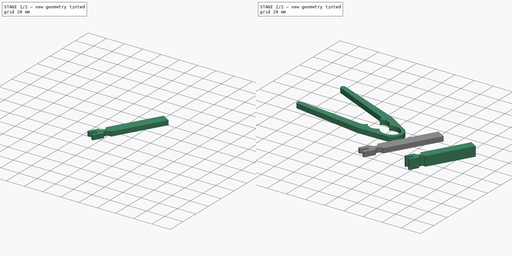
[diagram: build sequence overview — one tinted view per stage of 2, left to right]
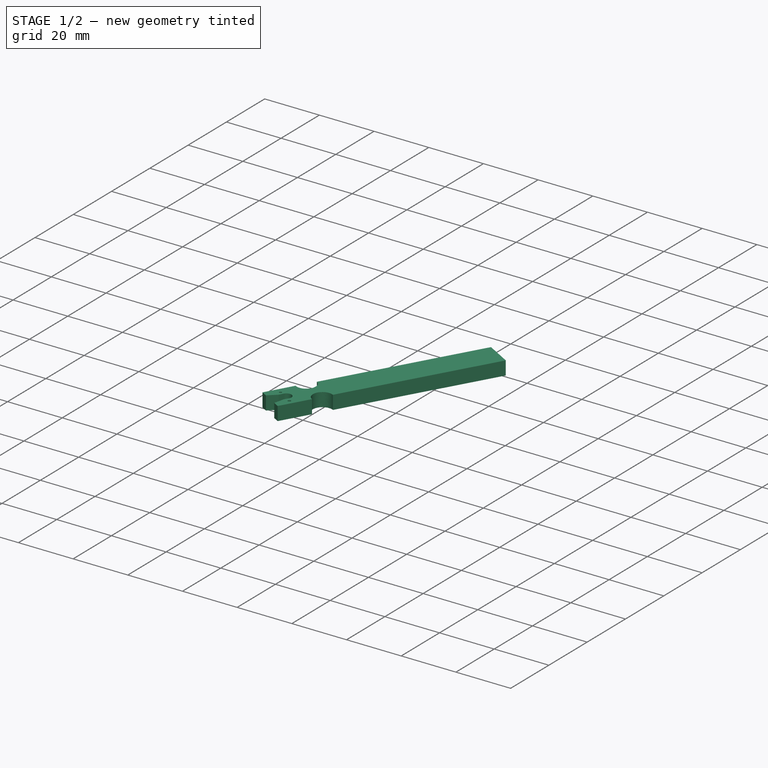
[diagram: stage 1 of 2 — iso view after this stage's code; geometry added in this stage tinted green]
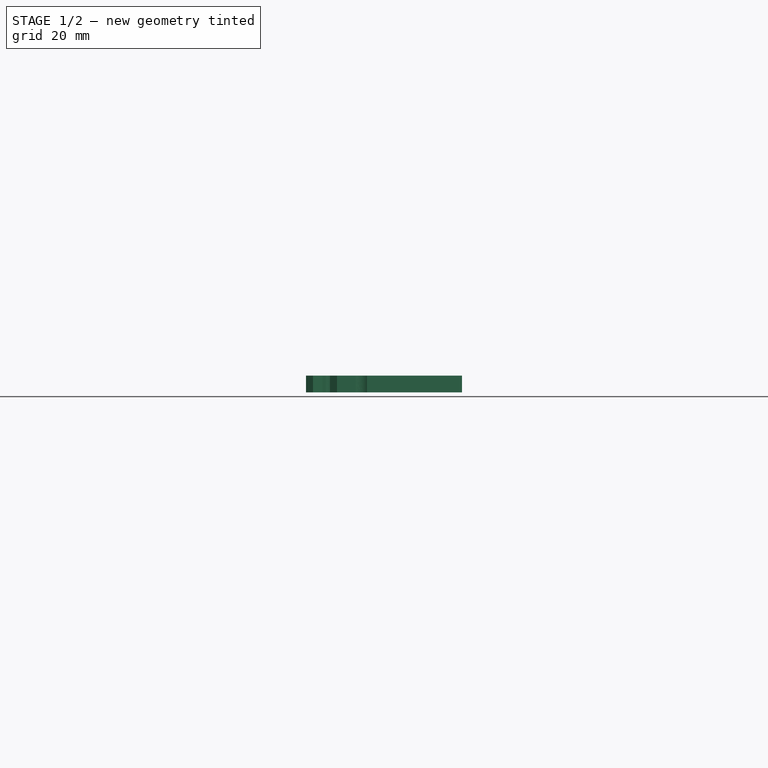
[diagram: stage 1 of 2 — front view after this stage's code; geometry added in this stage tinted green]
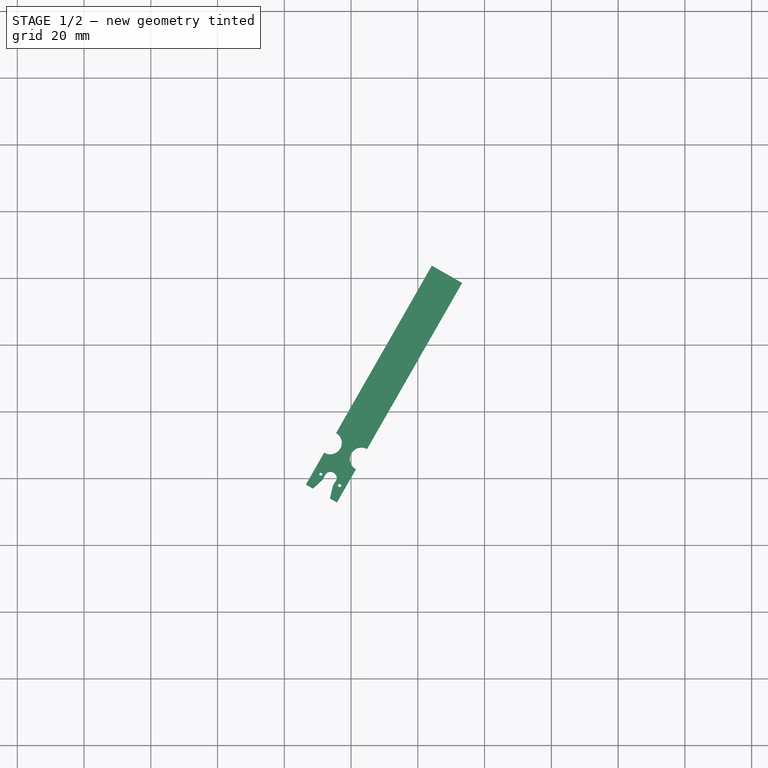
[diagram: stage 1 of 2 — top view after this stage's code; geometry added in this stage tinted green]
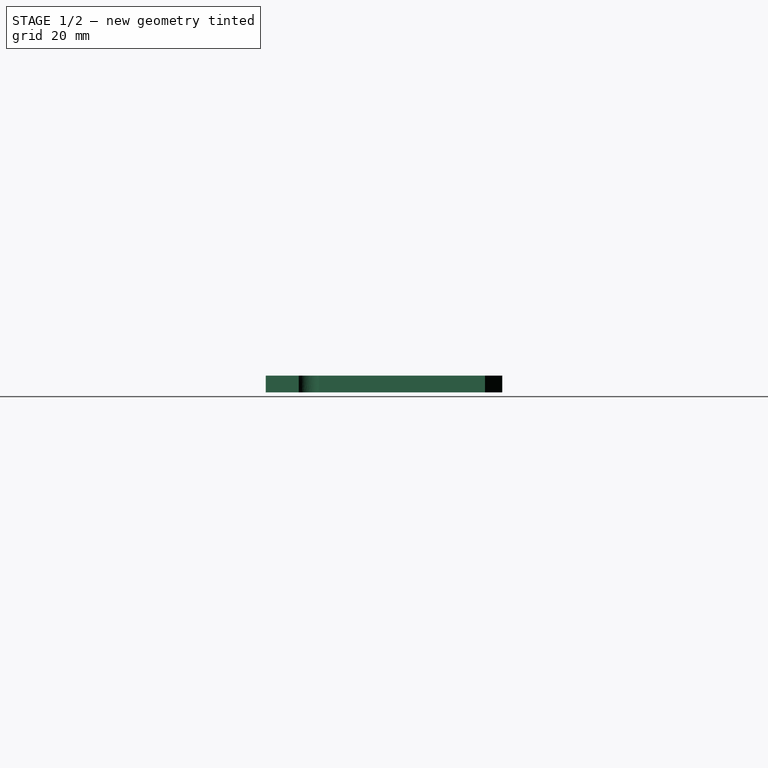
[diagram: stage 1 of 2 — right view after this stage's code; geometry added in this stage tinted green]
FCSTD DOCUMENT  (FreeCAD 0.20R29177 +426 (Git))
Label: pipette_calibrating_tools
License: All rights reserved
LicenseURL: http://en.wikipedia.org/wiki/All_rights_reserved
objects: Part::Extrusion×4, Image::ImagePlane×2, Sketcher::SketchObject×2, Part::Part2DObjectPython×2
note: 8 computed .brp shape members not serialized (recipe doc carries the construction recipe); baked Part::Feature solids carry a one-line shape summary decoded from their .brp

FEATURE [Image::ImagePlane] ImagePlane
  XSize = 252.646
  YSize = 252.91
FEATURE [Sketcher::SketchObject] Sketch
  FullyConstrained = false
  sketch-geometry (16):
    g0: LineSegment StartX=-109.598 StartY=14.7733 StartZ=0 EndX=-26.4756 EndY=5.97747 EndZ=0
    g1: ArcOfCircle CenterX=-25.5774 CenterY=13.222 CenterZ=0 NormalX=0 NormalY=0 NormalZ=1 AngleXU=0 Radius=7.3 StartAngle=4.58904 EndAngle=5.76222
    g2: ArcOfCircle CenterX=-9.76309 CenterY=14.0973 CenterZ=0 NormalX=0 NormalY=0 NormalZ=1 AngleXU=0 Radius=10.5 StartAngle=3.58541 EndAngle=5.52301
    g3: ArcOfCircle CenterX=10.1916 CenterY=14.468 CenterZ=0 NormalX=0 NormalY=0 NormalZ=1 AngleXU=0 Radius=14.5 StartAngle=3.69376 EndAngle=5.56478
    g4: ArcOfCircle CenterX=8.37087 CenterY=6.35616 CenterZ=0 NormalX=0 NormalY=0 NormalZ=1 AngleXU=0 Radius=15 StartAngle=0.453236 EndAngle=2.05099
    g5: ArcOfCircle CenterX=12.5193 CenterY=9.76272 CenterZ=0 NormalX=0 NormalY=0 NormalZ=1 AngleXU=0 Radius=9.85779 StartAngle=5.77015 EndAngle=6.60968
    g6: ArcOfCircle CenterX=-8.77645 CenterY=17.2429 CenterZ=0 NormalX=0 NormalY=0 NormalZ=1 AngleXU=0 Radius=10.5 StartAngle=0.232259 EndAngle=2.20506
    g7: ArcOfCircle CenterX=-22.2866 CenterY=26.118 CenterZ=0 NormalX=0 NormalY=0 NormalZ=1 AngleXU=0 Radius=7.3 StartAngle=6.226 EndAngle=7.52047
    g8: LineSegment StartX=-95.2781 StartY=67.5309 StartZ=0 EndX=-19.8969 EndY=33.0157 EndZ=0
    g9: ArcOfCircle CenterX=-93.9673 CenterY=70.2294 CenterZ=0 NormalX=0 NormalY=0 NormalZ=1 AngleXU=0 Radius=3 StartAngle=1.24467 EndAngle=4.26019
    g10: LineSegment StartX=-7.3066 StartY=38.1759 StartZ=0 EndX=-93.0061 EndY=73.0712 EndZ=0
    g11: LineSegment StartX=-7.3066 StartY=38.1759 StartZ=0 EndX=22.0259 EndY=20.0402 EndZ=0
    g12: ArcOfCircle CenterX=-110.162 CenterY=11.8268 CenterZ=0 NormalX=0 NormalY=0 NormalZ=1 AngleXU=0 Radius=3 StartAngle=1.38167 EndAngle=4.65561
    g13: LineSegment StartX=-110.332 StartY=8.83164 StartZ=0 EndX=-22.736 EndY=-4.72705 EndZ=0
    g14: LineSegment StartX=-22.736 StartY=-4.72705 StartZ=0 EndX=14.58 EndY=-4.0848 EndZ=0
    g15: ArcOfCircle CenterX=12.5193 CenterY=9.76272 CenterZ=0 NormalX=0 NormalY=0 NormalZ=1 AngleXU=0 Radius=14 StartAngle=4.86011 EndAngle=7.10753
  constraints (31):
    c: DistanceX(g0) = -26.4756
    c: DistanceY(g0) = 5.97747
    c: DistanceX(g0) = -109.598
    c: DistanceY(g0) = 14.7733
    c: Coincident(g1,g0)
    c: Radius(g1) = 7.3
    c: Coincident(g2,g1)
    c: Radius(g2) = 10.5
    c: Coincident(g3,g2)
    c: Radius(g3) = 14.5
    c: Radius(g4) = 15
    c: DistanceY(g3,g4) = 8
    c: Coincident(g5,g4)
    c: Coincident(g5,g3)
    c: Coincident(g6,g4)
    c: Radius(g6) = 10.5
    c: Coincident(g7,g6)
    c: Radius(g7) = 7.3
    c: Coincident(g8,g7)
    c: Coincident(g9,g8)
    c: Radius(g9) = 3
    c: Coincident(g10,g9)
    c: Coincident(g11,g10)
    c: Coincident(g12,g0)
    c: Radius(g12) = 3
    c: Coincident(g13,g12)
    c: Coincident(g14,g13)
    c: Coincident(g15,g11)
    c: Coincident(g15,g14)
    c: Radius(g15) = 14
    c: Coincident(g15,g5)
FEATURE [Part::Extrusion] Extrude001
  Base = -> Sketch
  Dir = (0,0,1)
  DirMode = 2
  FaceMakerClass = Part::FaceMakerBullseye
  LengthFwd = 5
  LengthRev = 0
  Solid = true
  Symmetric = false
FEATURE [Part::Part2DObjectPython] Clone2D001  label="Sketch001 (2D)"  # Draft 2D object (typed FeaturePython)
  Fuse = false
  Objects = -> [Sketch001]
  Placement = pos=(1.65591,3.69176,0) rot=(0,0,1;0rad)
  Scale = (1.2,1.2,1)
FEATURE [Part::Extrusion] Extrude003
  Base = -> Clone2D001
  Dir = (0,0,1)
  DirMode = 2
  FaceMakerClass = Part::FaceMakerBullseye
  LengthFwd = 5
  LengthRev = 0
  Solid = true
  Symmetric = false
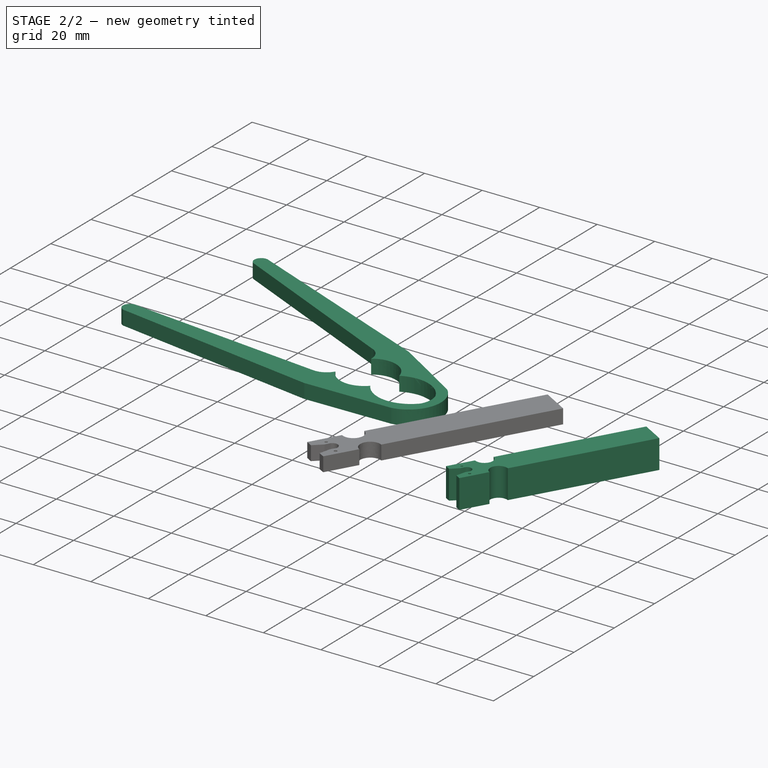
[diagram: stage 2 of 2 — iso view after this stage's code; geometry added in this stage tinted green]
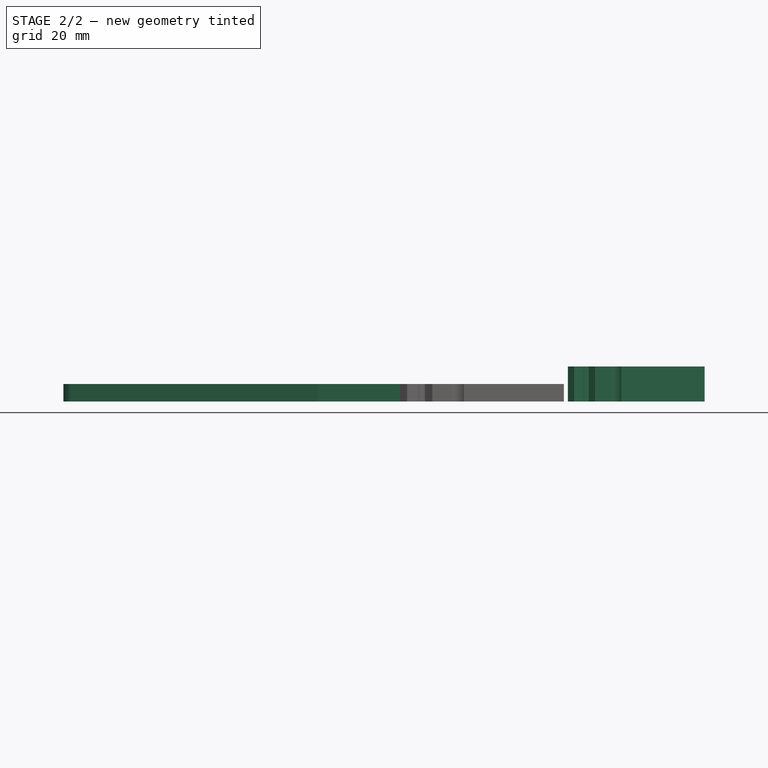
[diagram: stage 2 of 2 — front view after this stage's code; geometry added in this stage tinted green]
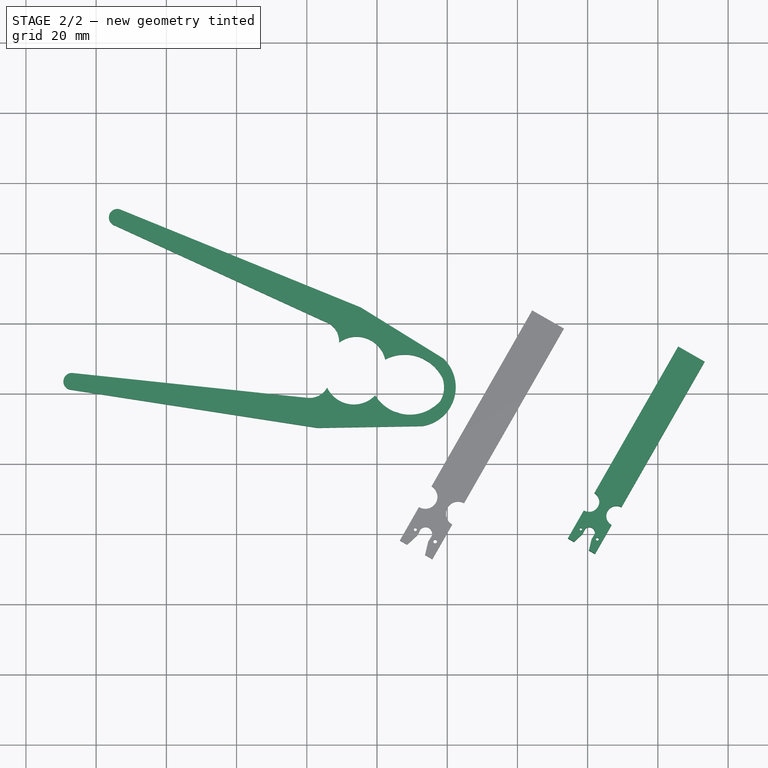
[diagram: stage 2 of 2 — top view after this stage's code; geometry added in this stage tinted green]
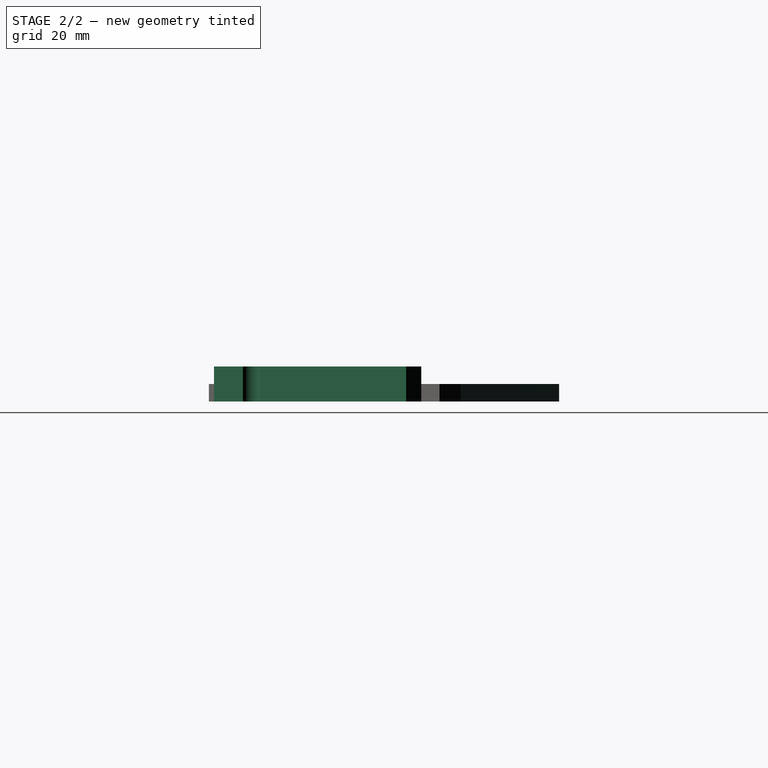
[diagram: stage 2 of 2 — right view after this stage's code; geometry added in this stage tinted green]
FEATURE [Image::ImagePlane] ImagePlane001
  XSize = 134.921
  YSize = 146.825
FEATURE [Sketcher::SketchObject] Sketch001
  FullyConstrained = false
  MapMode = 2
  Support = -> [Extrude001]
  sketch-geometry (16):
    g0: LineSegment StartX=18.7856 StartY=33.3659 StartZ=0 EndX=26.3059 EndY=29.0643 EndZ=0
    g1: LineSegment StartX=26.3059 StartY=29.0643 StartZ=0 EndX=2.60874 EndY=-12.3657 EndZ=0
    g2: LineSegment StartX=18.7856 StartY=33.3659 StartZ=0 EndX=-5.08362 EndY=-8.36486 EndZ=0
    g3: LineSegment StartX=-8.09148 StartY=-13.324 StartZ=0 EndX=-12.6254 EndY=-21.2507 EndZ=0
    g4: LineSegment StartX=-0.194613 StartY=-17.4432 StartZ=0 EndX=-4.90463 EndY=-25.6778 EndZ=0
    g5: ArcOfCircle CenterX=-6.58756 CenterY=-10.8444 CenterZ=0 NormalX=0 NormalY=0 NormalZ=1 AngleXU=0 Radius=2.9 StartAngle=4.16718 EndAngle=7.30877
    g6: ArcOfCircle CenterX=1.20706 CenterY=-14.9045 CenterZ=0 NormalX=0 NormalY=0 NormalZ=1 AngleXU=0 Radius=2.9 StartAngle=1.06633 EndAngle=4.20793
    g7: LineSegment StartX=-12.6254 StartY=-21.2507 StartZ=0 EndX=-10.8893 EndY=-22.2437 EndZ=0
    g8: LineSegment StartX=-4.90463 StartY=-25.6778 StartZ=0 EndX=-6.6407 EndY=-24.6848 EndZ=0
    g9: LineSegment StartX=-8.50403 StartY=-20.0441 StartZ=0 EndX=-10.8893 EndY=-22.2437 EndZ=0
    g10: LineSegment StartX=-5.88916 StartY=-21.5146 StartZ=0 EndX=-6.6407 EndY=-24.6848 EndZ=0
    g11: ArcOfCircle CenterX=-6.52615 CenterY=-19.6468 CenterZ=0 NormalX=0 NormalY=0 NormalZ=1 AngleXU=0 Radius=1.57719 StartAngle=5.98342 EndAngle=8.69901
    g12: LineSegment StartX=-8.50403 StartY=-20.0441 StartZ=0 EndX=-7.70587 EndY=-18.6 EndZ=0
    g13: LineSegment StartX=-5.88916 StartY=-21.5146 StartZ=0 EndX=-5.0193 EndY=-20.1126 EndZ=0
    g14: Circle CenterX=-8.93831 CenterY=-18.6593 CenterZ=0 NormalX=0 NormalY=0 NormalZ=1 AngleXU=0 Radius=0.376184
    g15: Circle CenterX=-4.24562 CenterY=-21.5045 CenterZ=0 NormalX=0 NormalY=0 NormalZ=1 AngleXU=0 Radius=0.434762
  constraints (31):
    c: Coincident(g1,g0)
    c: Coincident(g2,g0)
    c: Parallel(g2,g1)
    c: Perpendicular(g1,g0)
    c: Parallel(g3,g4)
    c: Parallel(g2,g4)
    c: Distance(g1,g4) = 5.8
    c: Distance(g2,g3) = 5.8
    c: Coincident(g5,g3)
    c: Coincident(g5,g2)
    c: Coincident(g6,g4)
    c: Coincident(g6,g1)
    c: Radius(g6) = 2.9
    c: Radius(g5) = 2.9
    c: Coincident(g7,g3)
    c: Coincident(g8,g4)
    c: Perpendicular(g8,g4)
    c: Perpendicular(g3,g7)
    c: Distance(g7) = 2
    c: Distance(g8) = 2
    c: Coincident(g9,g7)
    c: Coincident(g10,g8)
    c: Distance(g9,g10) = 3
    c: Distance(g7,g8) = 4.9
    c: Coincident(g12,g9)
    c: Coincident(g12,g11)
    c: Coincident(g13,g10)
    c: Coincident(g13,g11)
    c: Distance(g15,g4) = 1.5
    c: Distance(g9,g11) = 1.65
    c: Distance(g13) = 1.65
FEATURE [Part::Extrusion] Extrude
  Base = -> Sketch001
  Dir = (0,0,1)
  DirMode = 2
  FaceMakerClass = Part::FaceMakerBullseye
  LengthFwd = 10
  LengthRev = 0
  Placement = pos=(47,0,0) rot=(0,0,1;0rad)
  Solid = true
  Symmetric = false
FEATURE [Part::Part2DObjectPython] Clone2D  label="Sketch (2D)"  # Draft 2D object (typed FeaturePython)
  Fuse = false
  Objects = -> [Sketch]
  Placement = pos=(-18.7935,14.0459,0) rot=(0,0,1;0rad)
  Scale = (0.8,0.8,1)
FEATURE [Part::Extrusion] Extrude002
  Base = -> Clone2D
  Dir = (0,0,1)
  DirMode = 2
  FaceMakerClass = Part::FaceMakerBullseye
  LengthFwd = 5
  LengthRev = 0
  Solid = true
  Symmetric = false
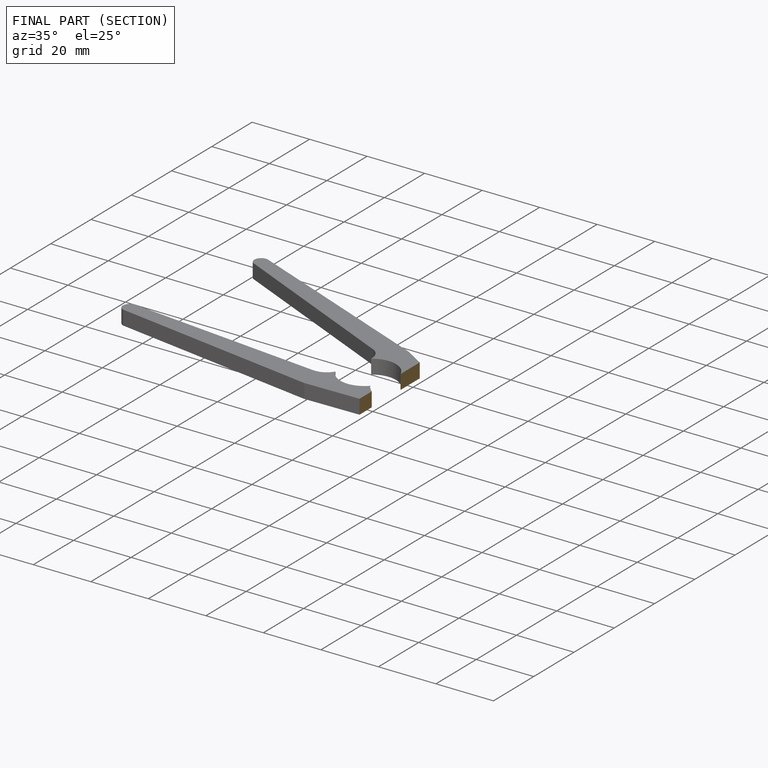
[diagram: finished part — half-section view (interior)]
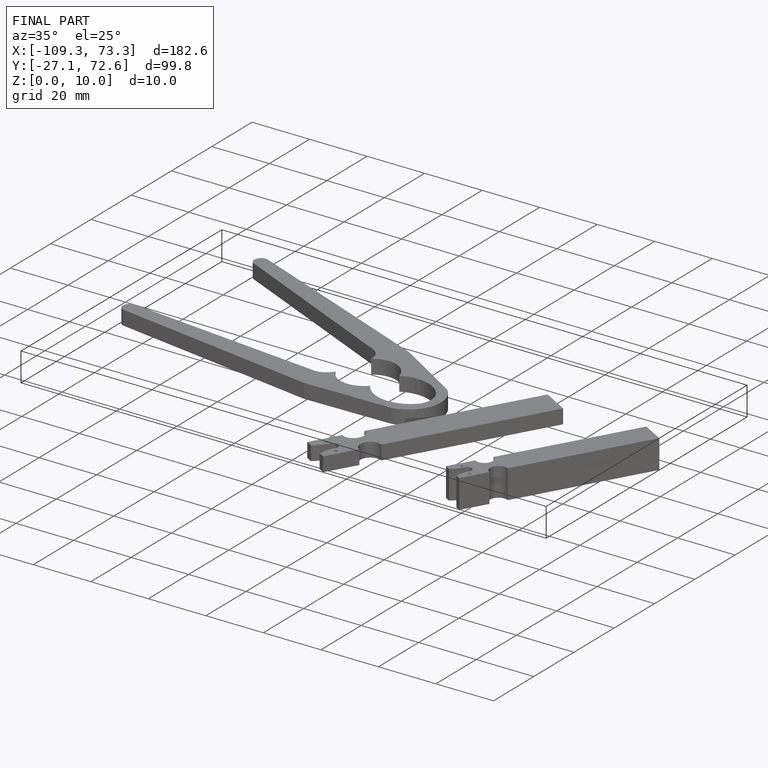
[diagram: finished part — iso view with bounding-box wireframe]
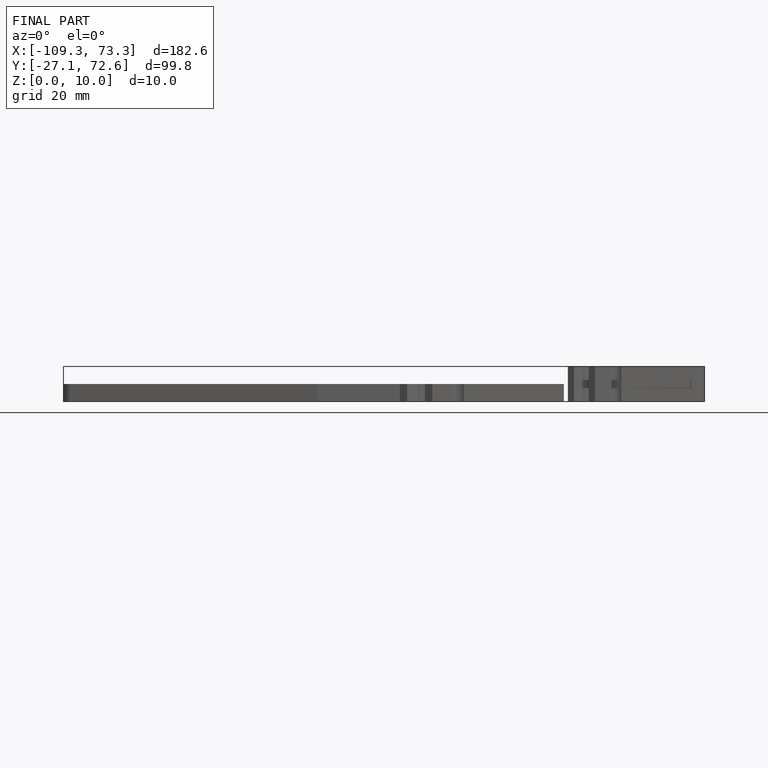
[diagram: finished part — front view with bounding-box wireframe]
